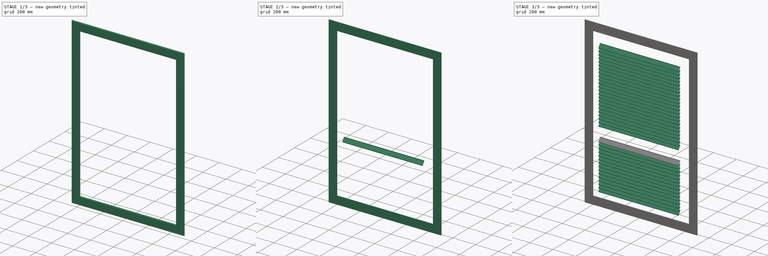
[diagram: build sequence overview — one tinted view per stage of 3, left to right]
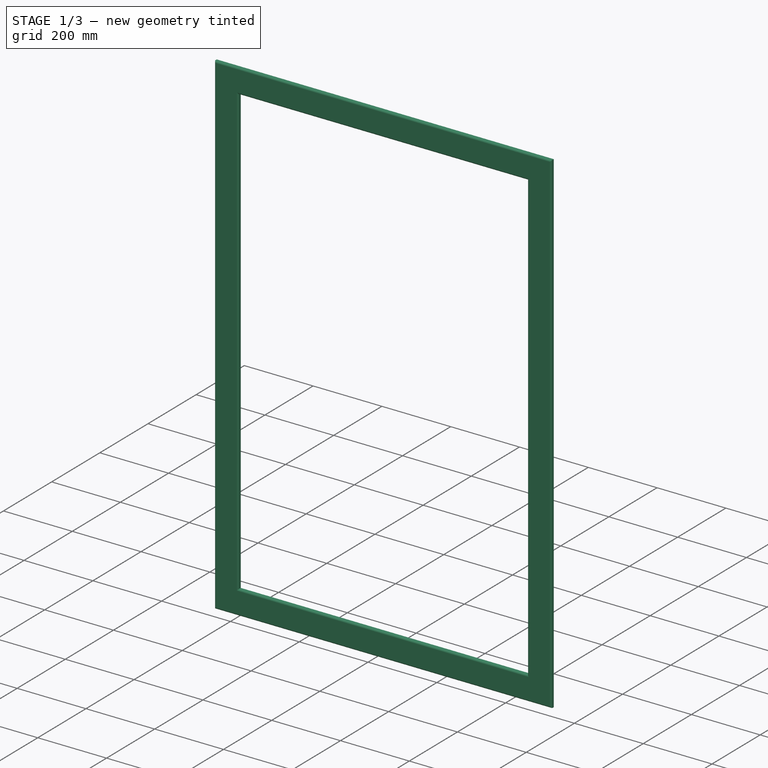
[diagram: stage 1 of 3 — iso view after this stage's code; geometry added in this stage tinted green]
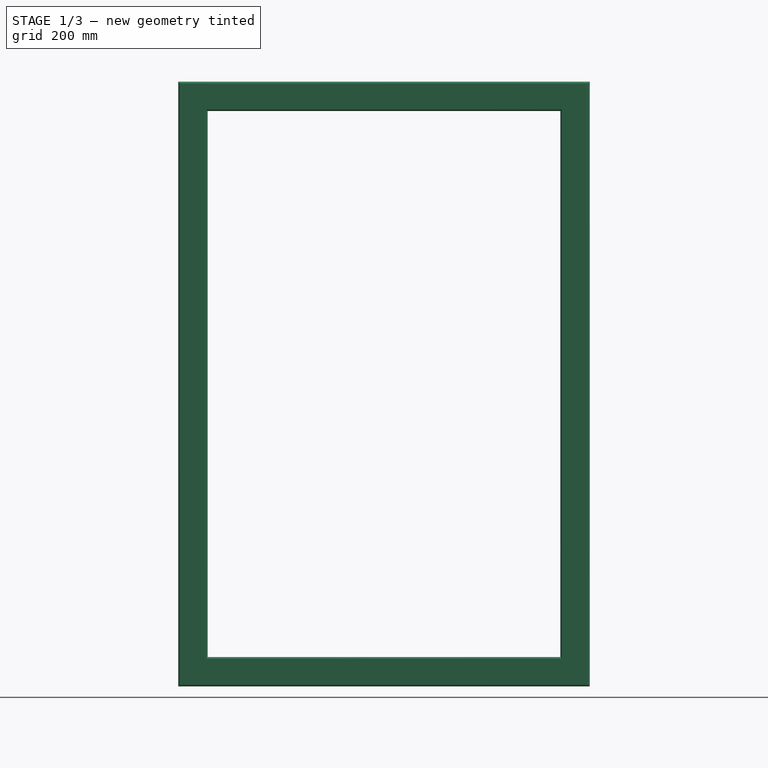
[diagram: stage 1 of 3 — front view after this stage's code; geometry added in this stage tinted green]
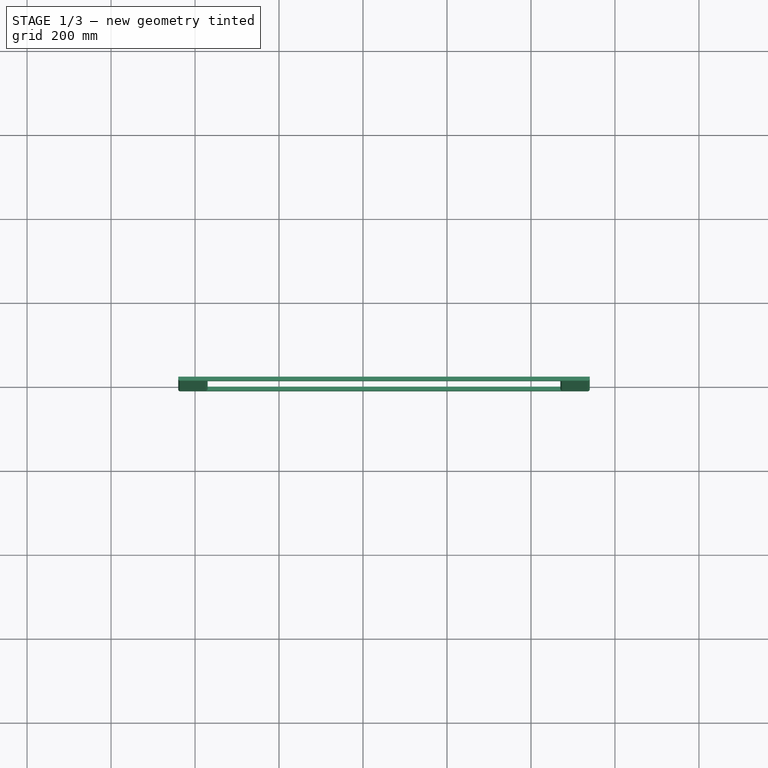
[diagram: stage 1 of 3 — top view after this stage's code; geometry added in this stage tinted green]
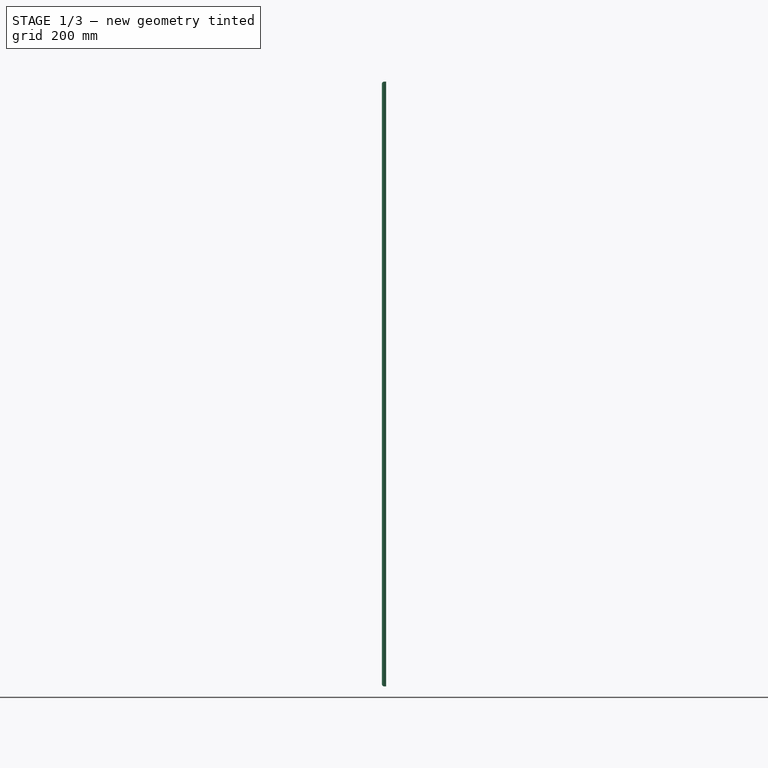
[diagram: stage 1 of 3 — right view after this stage's code; geometry added in this stage tinted green]
FCSTD DOCUMENT  (FreeCAD 0.16R6704 (Git))
Label: Single elevated door with shutters and trims
License: CreativeCommons Attribution
LicenseURL: http://creativecommons.org/licenses/by/4.0/
objects: Sketcher::SketchObject×4, Part::FeaturePython×3, Part::Extrusion×3, PartDesign::Fillet×1, Part::Mirroring×1, App::DocumentObjectGroup×1
note: 12 computed .brp shape members not serialized (recipe doc carries the construction recipe); baked Part::Feature solids carry a one-line shape summary decoded from their .brp

FEATURE [Sketcher::SketchObject] Sketch155
  Placement = pos=(0,0,0) rot=(1,0,0;1.5708rad)
  sketch-geometry (21):
    g0: LineSegment StartX=900 StartY=1850 StartZ=0 EndX=0 EndY=1850 EndZ=0
    g1: LineSegment StartX=30 StartY=520 StartZ=0 EndX=870 EndY=520 EndZ=0
    g2: LineSegment StartX=870 StartY=520 StartZ=0 EndX=870 EndY=1820 EndZ=0
    g3: LineSegment StartX=870 StartY=1820 StartZ=0 EndX=30 EndY=1820 EndZ=0
    g4: LineSegment StartX=30 StartY=1820 StartZ=0 EndX=30 EndY=520 EndZ=0
    g5: LineSegment StartX=101 StartY=1749 StartZ=0 EndX=799 EndY=1749 EndZ=0
    g6: LineSegment StartX=799 StartY=1749 StartZ=0 EndX=799 EndY=1110 EndZ=0
    g7: LineSegment StartX=799 StartY=1110 StartZ=0 EndX=101 EndY=1110 EndZ=0
    g8: LineSegment StartX=101 StartY=1110 StartZ=0 EndX=101 EndY=1749 EndZ=0
    g9: LineSegment StartX=101 StartY=1010 StartZ=0 EndX=799 EndY=1010 EndZ=0
    g10: LineSegment StartX=799 StartY=1010 StartZ=0 EndX=799 EndY=591 EndZ=0
    g11: LineSegment StartX=799 StartY=591 StartZ=0 EndX=101 EndY=591 EndZ=0
    g12: LineSegment StartX=101 StartY=591 StartZ=0 EndX=101 EndY=1010 EndZ=0
    g13: LineSegment [constr] StartX=-278 StartY=1060 StartZ=0 EndX=1352 EndY=1060 EndZ=0
    g14: LineSegment StartX=31 StartY=1819 StartZ=0 EndX=869 EndY=1819 EndZ=0
    g15: LineSegment StartX=869 StartY=1819 StartZ=0 EndX=869 EndY=521 EndZ=0
    g16: LineSegment StartX=869 StartY=521 StartZ=0 EndX=31 EndY=521 EndZ=0
    g17: LineSegment StartX=31 StartY=521 StartZ=0 EndX=31 EndY=1819 EndZ=0
    g18: LineSegment StartX=900 StartY=450 StartZ=0 EndX=0 EndY=450 EndZ=0
    g19: LineSegment StartX=900 StartY=450 StartZ=0 EndX=900 EndY=1850 EndZ=0
    g20: LineSegment StartX=0 StartY=450 StartZ=0 EndX=0 EndY=1850 EndZ=0
  constraints (62):
    c: Horizontal(g0)
    c: Coincident(g1,g2)
    c: Coincident(g2,g3)
    c: Coincident(g3,g4)
    c: Coincident(g4,g1)
    c: Horizontal(g1)
    c: Horizontal(g3)
    c: Vertical(g2)
    c: Vertical(g4)
    c: DistanceY(g3,g0) = 30  'Altura_batente_superior'
    c: DistanceX(g0,g3) = 30  'Largura_batente_vertical_1'
    c: Coincident(g5,g6)  'Constraint20'
    c: Coincident(g6,g7)  'Constraint17'
    c: Coincident(g7,g8)  'Constraint16'
    c: Coincident(g8,g5)  'Constraint15'
    c: Horizontal(g5)
    c: Horizontal(g7)
    c: Vertical(g6)
    c: Vertical(g8)
    c: Coincident(g9,g10)
    c: Coincident(g10,g11)
    c: Coincident(g11,g12)
    c: Coincident(g12,g9)
    c: Horizontal(g9)
    c: Horizontal(g11)
    c: Vertical(g10)
    c: Vertical(g12)
    c: DistanceX(g7,g9) = 0
    c: DistanceX(g6,g9) = 0
    c: DistanceY(g9,g7) = 100  'Altura_montante_intermediario_porta'
    c: Horizontal(g13)
    c: Symmetric(g7,g9,g13)
    c: Coincident(g14,g15)
    c: Coincident(g15,g16)
    c: Coincident(g16,g17)
    c: Coincident(g17,g14)
    c: Horizontal(g14)
    c: Horizontal(g16)
    c: Vertical(g15)
    c: Vertical(g17)
    c: DistanceY(g16,g11) = 70  'Altura_montante_inferior_porta'
    c: Horizontal(g18)  'Constraint46'
    c: DistanceY(g-1,g18) = 450  'Altura_peitoril'
    c: DistanceX(g18,g-1) = 0  'Constraint69'
    c: DistanceX(g2,g0) = 30  'Largura_batente_vertical_2_porta'
    c: DistanceX(g15,g1) = 1  'Constraint63'
    c: DistanceY(g1,g15) = 1  'Constraint62'
    c: DistanceX(g1,g16) = 1  'Constraint61'
    c: DistanceY(g14,g2) = 1  'Constraint59'
    c: DistanceY(g5,g14) = 70  'Altura_montante_superior_porta'
    c: DistanceX(g5,g14) = 70  'Largura_montante_vertical_2_porta'
    c: Coincident(g19,g18)  'Constraint57'
    c: Coincident(g19,g0)  'Constraint54'
    c: Vertical(g19)
    c: Coincident(g20,g18)
    c: Coincident(g20,g0)
    c: Vertical(g20)
    c: DistanceX(g18,g18) = 900  'Largura_vao'
    c: DistanceY(g18,g0) = 1400  'Altura_vao'
    c: DistanceY(g18,g13) = 610  'Altura_eixo_montante_intermediario_porta'
    c: DistanceX(g14,g5) = 70  'Largura_montante_vertical_1_porta'
    c: DistanceY(g18,g1) = 70  'Peitoril'
FEATURE [Part::FeaturePython] Window103  label="Single elevated door with shutters"  # WARN: FeaturePython — macro-defined, semantics opaque (R4)
  Base = -> Sketch155
  Height = 2100
  HoleDepth = 0
  MoveWithHost = true
  Normal = (0,1,0)
  Preset = 6
  Role = 1
  Width = 900
  WindowParts = BATENTE | Frame | Wire0,Wire1 | 140.0 | 0.0 | PORTA | Frame | Wire2,Wire3,Wire4 | 40.0 | 100.0
FEATURE [Sketcher::SketchObject] Sketch201  label="Esboço guarnições "
  ExternalGeometry = -> [Window103]
  Placement = pos=(0,0,0) rot=(1,0,0;1.5708rad)
  Support = -> Window103 [Face4]
  sketch-geometry (12):
    g0: LineSegment StartX=30 StartY=1820 StartZ=0 EndX=870 EndY=1820 EndZ=0
    g1: LineSegment StartX=870 StartY=1820 StartZ=0 EndX=870 EndY=520 EndZ=0
    g2: LineSegment StartX=870 StartY=520 StartZ=0 EndX=30 EndY=520 EndZ=0
    g3: LineSegment StartX=30 StartY=520 StartZ=0 EndX=30 EndY=1820 EndZ=0
    g4: LineSegment StartX=-40 StartY=1890 StartZ=0 EndX=940 EndY=1890 EndZ=0
    g5: LineSegment StartX=940 StartY=1890 StartZ=0 EndX=940 EndY=450 EndZ=0
    g6: LineSegment StartX=940 StartY=450 StartZ=0 EndX=-40 EndY=450 EndZ=0
    g7: LineSegment StartX=-40 StartY=450 StartZ=0 EndX=-40 EndY=1890 EndZ=0
    g8: LineSegment [constr] StartX=-40 StartY=2044.57 StartZ=0 EndX=30 EndY=2044.57 EndZ=0
    g9: LineSegment [constr] StartX=668.707 StartY=1820 StartZ=0 EndX=668.707 EndY=1890 EndZ=0
    g10: LineSegment [constr] StartX=870 StartY=1887.58 StartZ=0 EndX=940 EndY=1887.58 EndZ=0
    g11: LineSegment [constr] StartX=222.737 StartY=520 StartZ=0 EndX=222.737 EndY=450 EndZ=0
  constraints (34):
    c: Coincident(g0,g1)
    c: Coincident(g1,g2)
    c: Coincident(g2,g3)
    c: Coincident(g3,g0)
    c: Horizontal(g0)
    c: Horizontal(g2)
    c: Vertical(g1)
    c: Vertical(g3)
    c: Coincident(g0,g-4)
    c: Coincident(g1,g-6)
    c: Coincident(g4,g5)
    c: Coincident(g5,g6)
    c: Coincident(g6,g7)
    c: Coincident(g7,g4)
    c: Horizontal(g4)
    c: Horizontal(g6)
    c: Vertical(g5)
    c: Vertical(g7)
    c: DistanceX(g4,g0) = 70  'Largura guarnição'
    c: PointOnObject(g8,g7)
    c: PointOnObject(g8,g-3)
    c: PointOnObject(g9,g4)
    c: PointOnObject(g9,g-4)
    c: PointOnObject(g10,g-5)
    c: PointOnObject(g10,g5)
    c: Angle(g8) = 0
    c: Angle(g9) = 1.5708
    c: Angle(g10) = 0
    c: PointOnObject(g11,g-6)
    c: PointOnObject(g11,g6)
    c: Angle(g11) = -1.5708
    c: Equal(g11,g8)
    c: Equal(g8,g9)
    c: Equal(g9,g10)
FEATURE [Part::Extrusion] Extrude_Sketch201  label="Trim "
  Base = -> Sketch201
  Dir = (0,-10,0)
  Solid = true
FEATURE [PartDesign::Fillet] Fillet009  label="Final trim "
  Base = -> Extrude_Sketch201 [Edge4,Edge7,Edge10,Edge12,Edge16,Edge19,Edge22,Edge24]
  Radius = 5
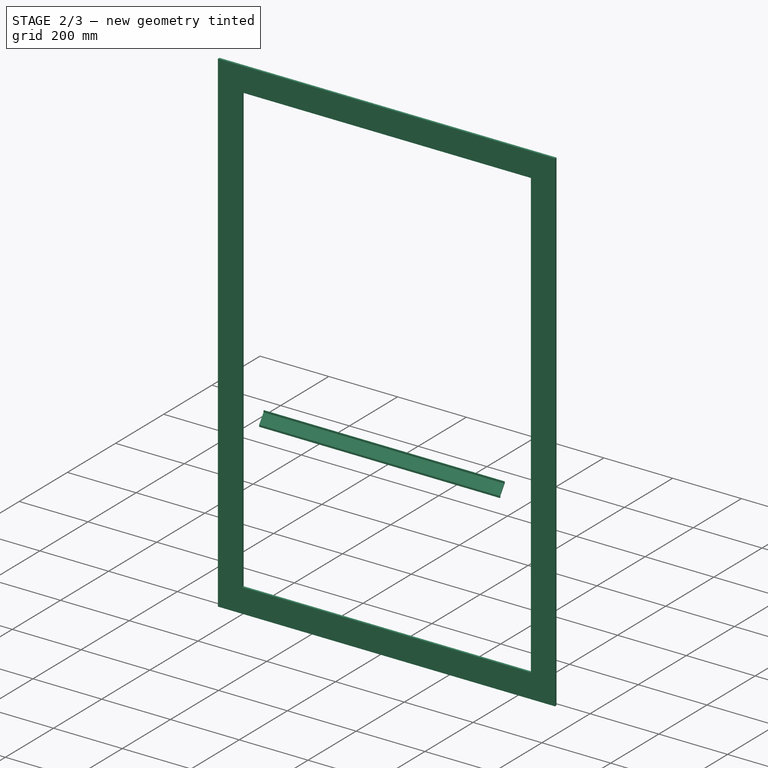
[diagram: stage 2 of 3 — iso view after this stage's code; geometry added in this stage tinted green]
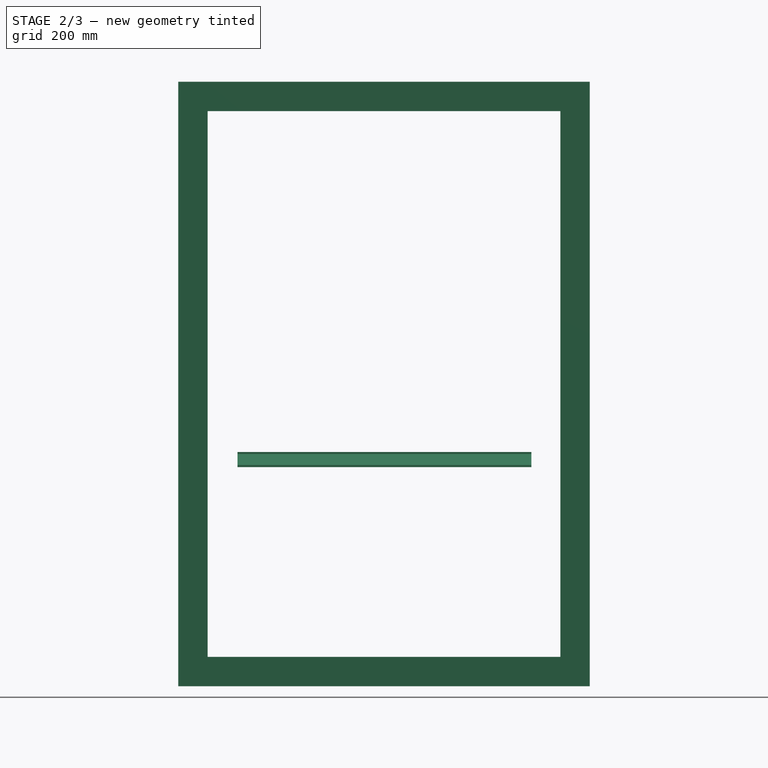
[diagram: stage 2 of 3 — front view after this stage's code; geometry added in this stage tinted green]
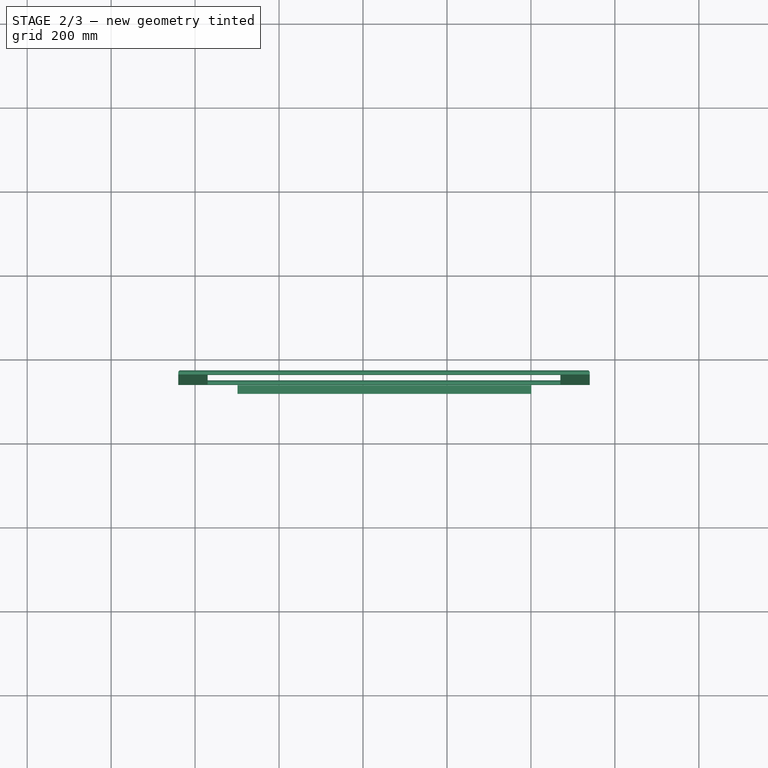
[diagram: stage 2 of 3 — top view after this stage's code; geometry added in this stage tinted green]
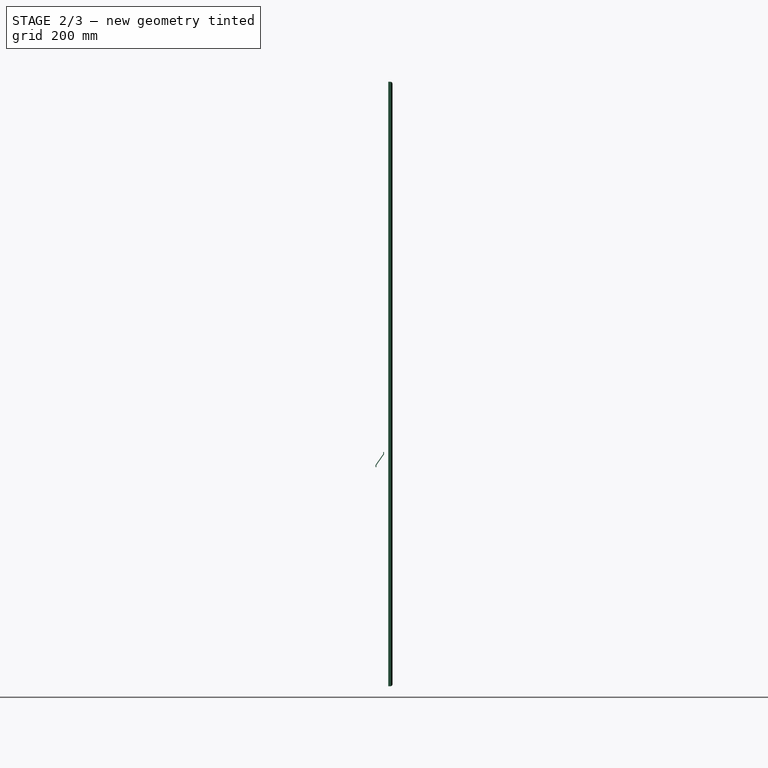
[diagram: stage 2 of 3 — right view after this stage's code; geometry added in this stage tinted green]
FEATURE [Part::Extrusion] Extrude_Sketch156  label="Módulo veneziana 008"
  Base = -> Sketch156
  Dir = (700,0,0)
  Solid = true
  expr: Dir.x = Sketch155.Constraints.Largura_vao - Sketch155.Constraints.Largura_batente_vertical_1 - Sketch155.Constraints.Largura_batente_vertical_2_porta - Sketch155.Constraints.Largura_montante_vertical_1_porta - Sketch155.Constraints.Largura_montante_vertical_2_porta
FEATURE [Part::Mirroring] Part__Mirroring009  label="Final trim (Mirror #10)"
  Base = (0,0,0)
  Normal = (0,1,0)
  Placement = pos=(0,140,0) rot=(0,0,1;0rad)
  Source = -> Fillet009
FEATURE [App::DocumentObjectGroup] Grupo108  label="Single elevated door with shutters and trims"
  Group = -> [Window103,Array016,Array017,Sketch201,Extrude_Sketch201,Part__Mirroring009]
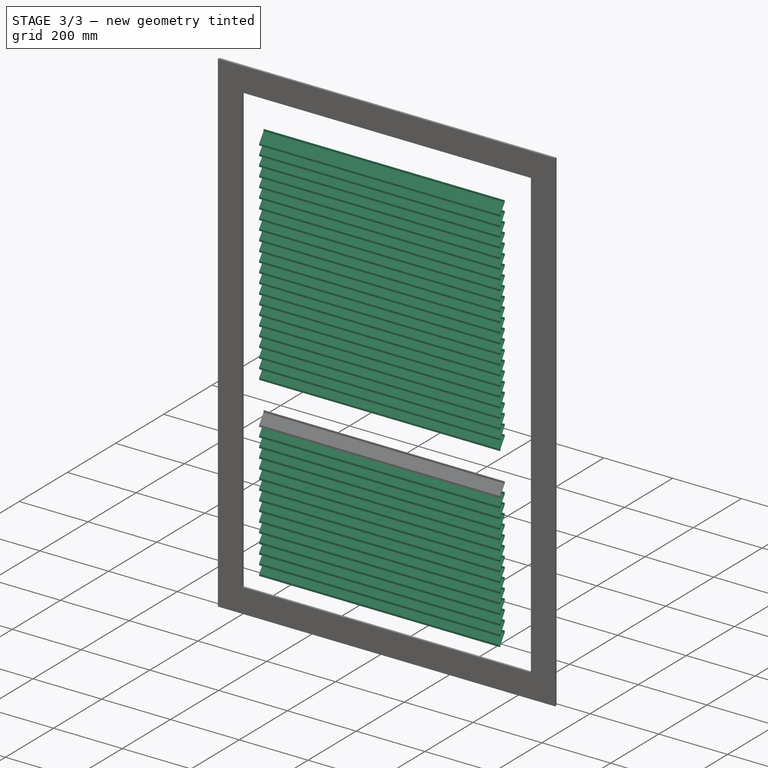
[diagram: stage 3 of 3 — iso view after this stage's code; geometry added in this stage tinted green]
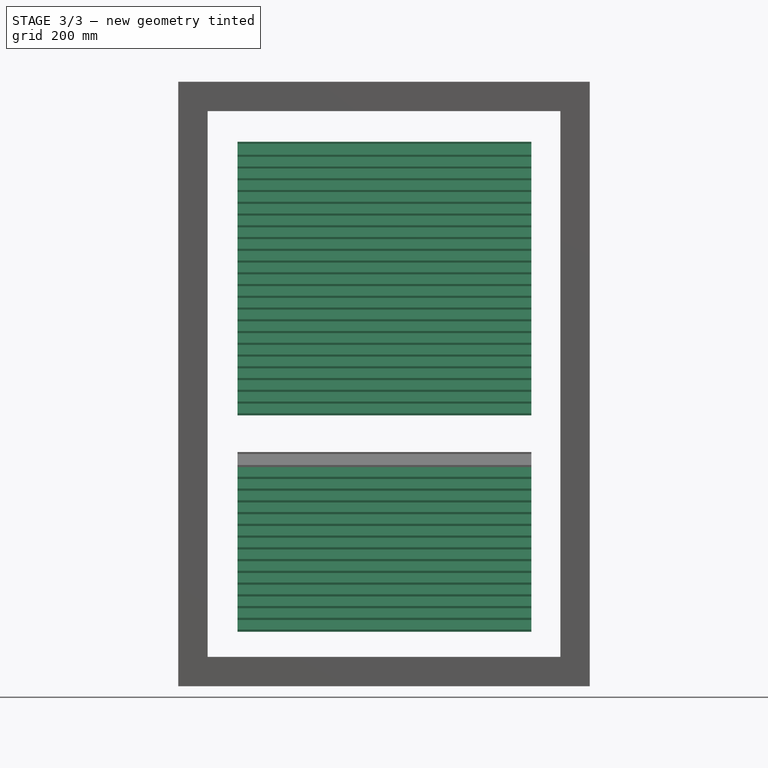
[diagram: stage 3 of 3 — front view after this stage's code; geometry added in this stage tinted green]
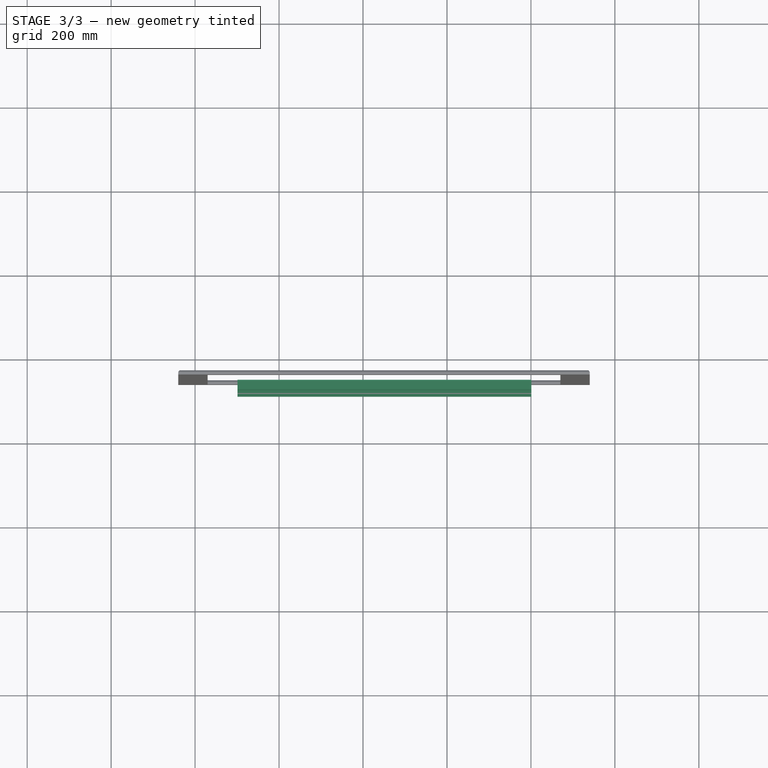
[diagram: stage 3 of 3 — top view after this stage's code; geometry added in this stage tinted green]
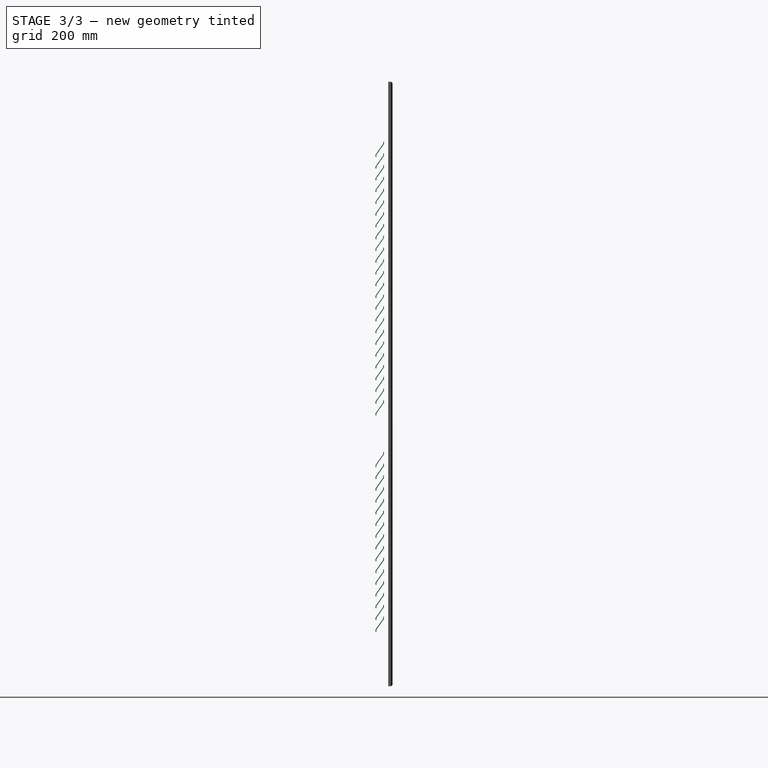
[diagram: stage 3 of 3 — right view after this stage's code; geometry added in this stage tinted green]
FEATURE [Sketcher::SketchObject] Sketch156
  ExternalGeometry = -> [Window103]
  Placement = pos=(101,0,0) rot=(0.57735,0.57735,0.57735;2.0944rad)
  Support = -> Window103 [Face17]
  sketch-geometry (9):
    g0: LineSegment [constr] StartX=120 StartY=493.864 StartZ=0 EndX=120 EndY=493.864 EndZ=0
    g1: LineSegment StartX=128 StartY=1008 StartZ=0 EndX=128 EndY=1003.2 EndZ=0
    g2: LineSegment StartX=128 StartY=1003.2 StartZ=0 EndX=109.76 EndY=977.146 EndZ=0
    g3: LineSegment StartX=109.76 StartY=977.146 StartZ=0 EndX=109.76 EndY=971.855 EndZ=0
    g4: LineSegment StartX=109.76 StartY=971.855 StartZ=0 EndX=111.76 EndY=971.855 EndZ=0
    g5: LineSegment StartX=111.76 StartY=971.855 StartZ=0 EndX=111.76 EndY=976.659 EndZ=0
    g6: LineSegment StartX=111.76 StartY=976.659 StartZ=0 EndX=130 EndY=1002.71 EndZ=0
    g7: LineSegment StartX=130 StartY=1002.71 StartZ=0 EndX=130 EndY=1008 EndZ=0
    g8: LineSegment StartX=130 StartY=1008 StartZ=0 EndX=128 EndY=1008 EndZ=0
  constraints (24):
    c: Angle(g2) = -2.18166
    c: DistanceY(g5,g6) = 26.05
    c: Coincident(g1,g8)
    c: Coincident(g7,g8)
    c: Coincident(g6,g7)
    c: Coincident(g1,g2)
    c: Vertical(g1)
    c: Vertical(g7)
    c: Vertical(g3)
    c: Vertical(g5)
    c: Horizontal(g4)
    c: Horizontal(g8)
    c: Coincident(g3,g4)
    c: Coincident(g4,g5)
    c: Coincident(g2,g3)
    c: Coincident(g5,g6)
    c: Parallel(g2,g6)
    c: DistanceY(g6,g7) = 5.29121
    c: DistanceX(g1,g7) = 2
    c: DistanceY(g4,g5) = 4.80401
    c: DistanceX(g3,g4) = 2
    c: DistanceY(g6,g1) = 0.4872
    c: DistanceY(g7,g-3) = 2
    c: DistanceX(g7,g-3) = 10
FEATURE [Sketcher::SketchObject] Sketch157
  ExternalGeometry = -> [Window103]
  Placement = pos=(101,0,0) rot=(0.57735,0.57735,0.57735;2.0944rad)
  Support = -> Window103 [Face22]
  sketch-geometry (9):
    g0: LineSegment [constr] StartX=120 StartY=493.864 StartZ=0 EndX=120 EndY=493.864 EndZ=0
    g1: LineSegment StartX=128 StartY=1747 StartZ=0 EndX=128 EndY=1742.27 EndZ=0
    g2: LineSegment StartX=128 StartY=1742.27 StartZ=0 EndX=109.76 EndY=1716.22 EndZ=0
    g3: LineSegment StartX=109.76 StartY=1716.22 StartZ=0 EndX=109.76 EndY=1711.22 EndZ=0
    g4: LineSegment StartX=109.76 StartY=1711.22 StartZ=0 EndX=111.76 EndY=1711.22 EndZ=0
    g5: LineSegment StartX=111.76 StartY=1711.22 StartZ=0 EndX=111.76 EndY=1715.95 EndZ=0
    g6: LineSegment StartX=111.76 StartY=1715.95 StartZ=0 EndX=130 EndY=1742 EndZ=0
    g7: LineSegment StartX=130 StartY=1742 StartZ=0 EndX=130 EndY=1747 EndZ=0
    g8: LineSegment StartX=130 StartY=1747 StartZ=0 EndX=128 EndY=1747 EndZ=0
  constraints (24):
    c: Coincident(g1,g8)
    c: Coincident(g7,g8)
    c: Coincident(g6,g7)
    c: Coincident(g1,g2)
    c: Coincident(g2,g3)
    c: Coincident(g5,g6)
    c: Coincident(g3,g4)
    c: Coincident(g4,g5)
    c: DistanceX(g1,g7) = 2
    c: Parallel(g2,g6)
    c: Vertical(g1)
    c: Vertical(g7)
    c: Vertical(g3)
    c: Vertical(g5)
    c: Horizontal(g8)
    c: Horizontal(g4)
    c: Angle(g2) = -2.18166
    c: DistanceY(g6,g7) = 5
    c: DistanceY(g5,g6) = 26.05
    c: DistanceY(g1,g1) = 4.73123
    c: DistanceY(g7,g-3) = 2
    c: DistanceX(g7,g-3) = 10
    c: DistanceX(g3,g4) = 2
    c: DistanceY(g4,g5) = 4.73123
FEATURE [Part::Extrusion] Extrude_Sketch157  label="Módulo veneziana 007"
  Base = -> Sketch157
  Dir = (700,0,0)
  Solid = true
  expr: Dir.x = Sketch155.Constraints.Largura_vao - Sketch155.Constraints.Largura_batente_vertical_1 - Sketch155.Constraints.Largura_batente_vertical_2_porta - Sketch155.Constraints.Largura_montante_vertical_1_porta - Sketch155.Constraints.Largura_montante_vertical_2_porta
FEATURE [Part::FeaturePython] Array016  label="Superior shutter"  # Draft array (typed FeaturePython)
  Angle = 360
  ArrayType = 0
  Axis = (0,0,1)
  Base = -> Extrude_Sketch157
  Center = (0,0,0)
  Fuse = false
  IntervalAxis = (0,0,0)
  IntervalX = (1,0,0)
  IntervalY = (0,1,0)
  IntervalZ = (0,0,-28)
  NumberPolar = 1
  NumberX = 1
  NumberY = 1
  NumberZ = 23
  expr: NumberZ = (Sketch155.Constraints.Altura_vao - Sketch155.Constraints.Altura_eixo_montante_intermediario_porta - Sketch155.Constraints.Altura_montante_intermediario_porta / 2 - Sketch155.Constraints.Altura_montante_superior_porta - Sketch155.Constraints.Altura_batente_superior) / 28
FEATURE [Part::FeaturePython] Array017  label="Inferior shutter"  # Draft array (typed FeaturePython)
  Angle = 360
  ArrayType = 0
  Axis = (0,0,1)
  Base = -> Extrude_Sketch156
  Center = (0,0,0)
  Fuse = false
  IntervalAxis = (0,0,0)
  IntervalX = (1,0,0)
  IntervalY = (0,1,0)
  IntervalZ = (0,0,-28)
  NumberPolar = 1
  NumberX = 1
  NumberY = 1
  NumberZ = 15
  expr: NumberZ = (Sketch155.Constraints.Altura_eixo_montante_intermediario_porta - Sketch155.Constraints.Altura_montante_intermediario_porta / 2 - Sketch155.Constraints.Altura_montante_inferior_porta - Sketch155.Constraints.Peitoril) / 28
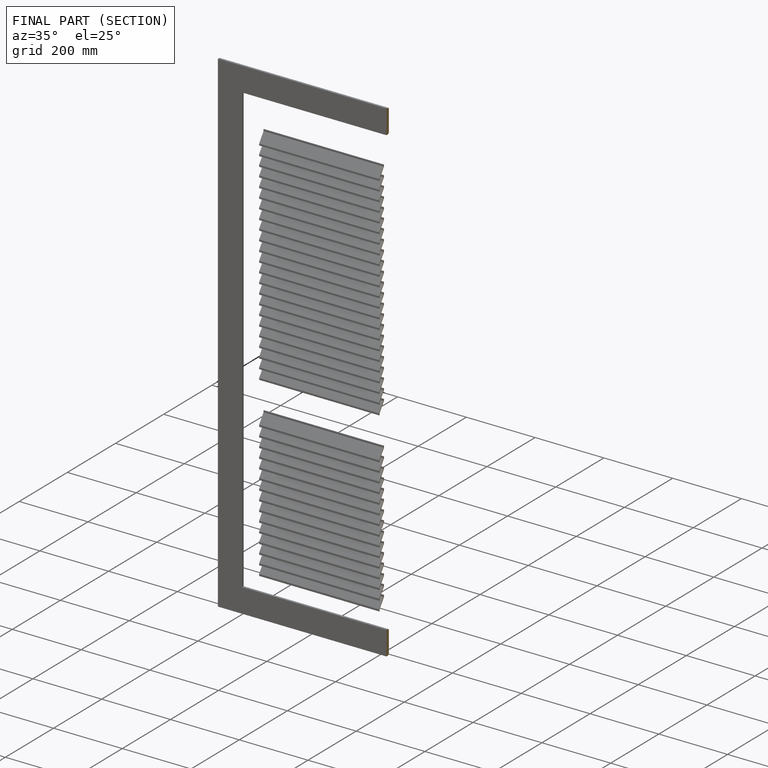
[diagram: finished part — half-section view (interior)]
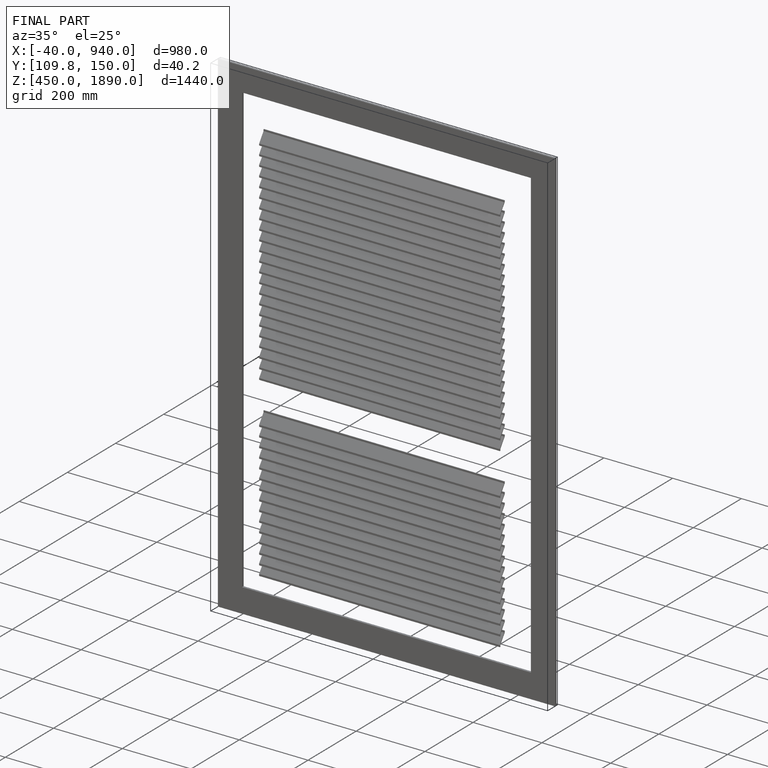
[diagram: finished part — iso view with bounding-box wireframe]
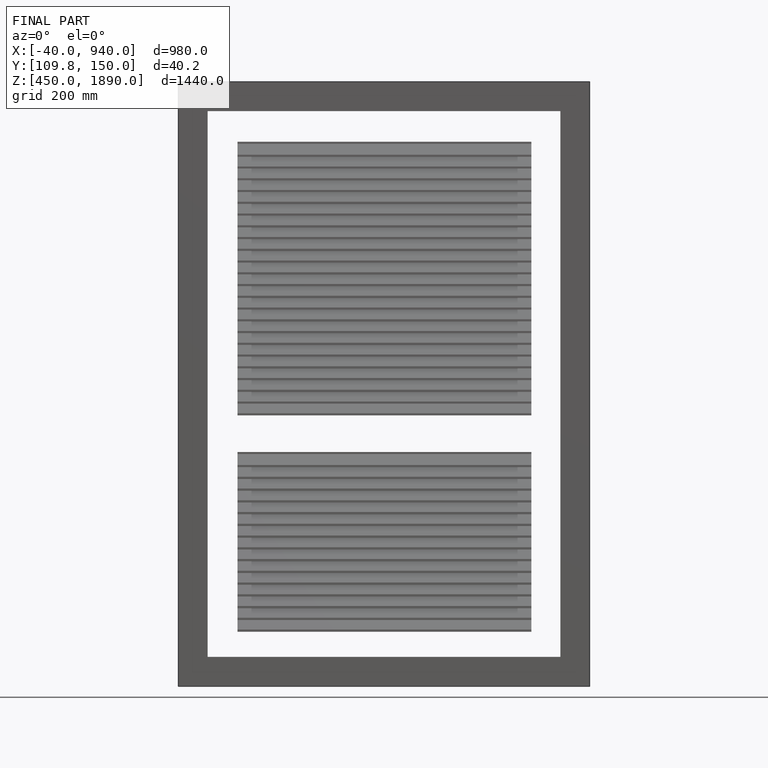
[diagram: finished part — front view with bounding-box wireframe]
